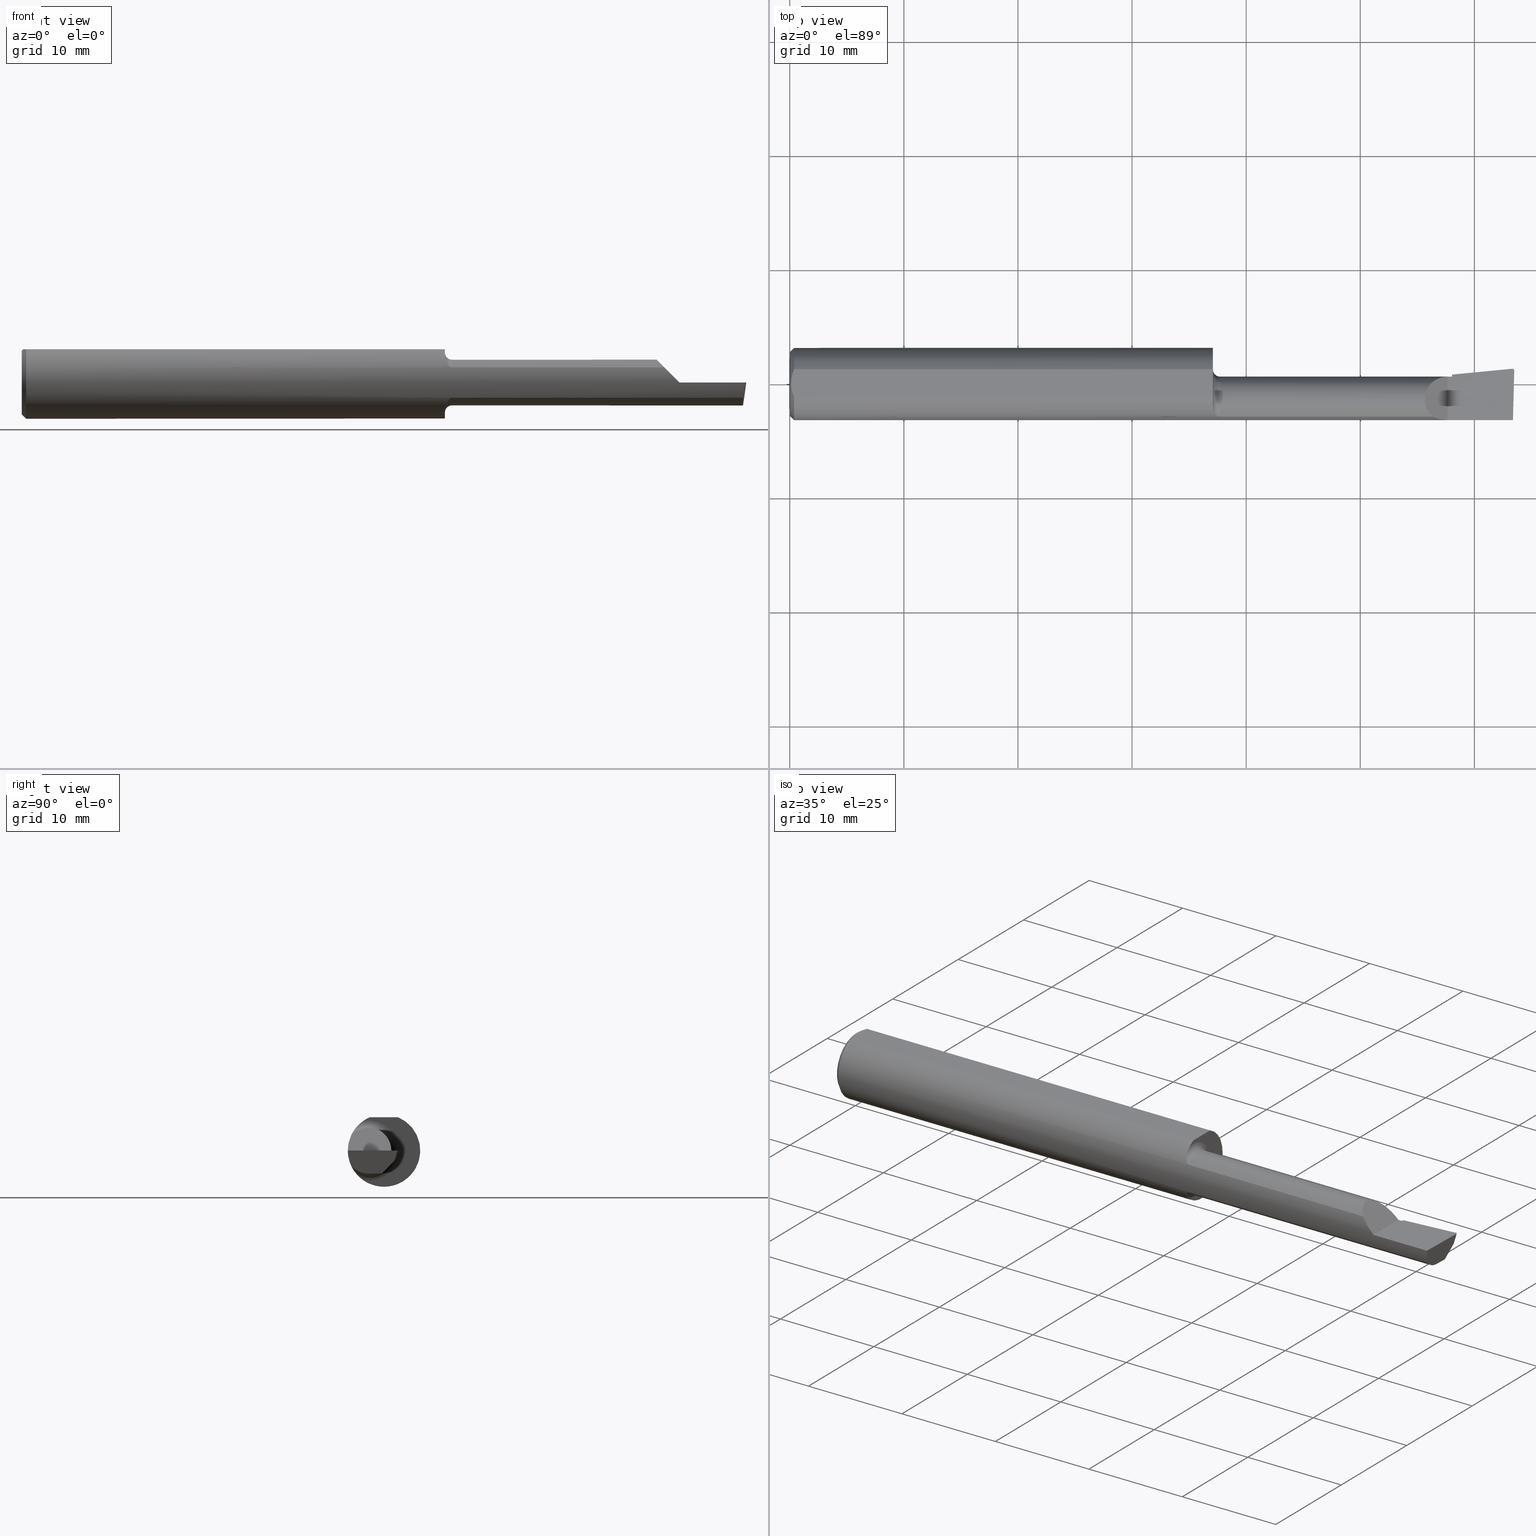
[diagram: canonical four-view strip — front | top / right | iso, engineering-drawing reading convention]
A machine part, canonical four-view strip (front | top / right | iso — engineering-drawing reading convention). The complete STEP part file that produces these views, byte-faithful:
ISO-10303-21;
HEADER;
FILE_DESCRIPTION (( 'STEP AP214' ),
    '1' );
FILE_NAME ('B1801000R.STEP',
    '2020-05-08T22:49:00',
    ( '' ),
    ( '' ),
    'SwSTEP 2.0',
    'SolidWorks 2018',
    '' );
FILE_SCHEMA (( 'AUTOMOTIVE_DESIGN' ));
ENDSEC;

DATA;
#1 = CARTESIAN_POINT ( 'NONE',  ( 2.285000000000000142, -0.05399999999999999939, -0.07914999999999994262 ) ) ;
#2 = CARTESIAN_POINT ( 'NONE',  ( 4.111069666048746882E-31, -0.1248499999999999888, 9.802154982235641300E-16 ) ) ;
#3 = ORIENTED_EDGE ( 'NONE', *, *, #365, .F. ) ;
#4 = CARTESIAN_POINT ( 'NONE',  ( 1.485000000000000098, -0.1133222222222221853, -0.05239843939104740084 ) ) ;
#5 = EDGE_LOOP ( 'NONE', ( #356, #461, #264, #254, #626 ) ) ;
#6 = DIRECTION ( 'NONE',  ( -0.06894566448119622548, 0.7160281025913035613, -0.6946583704589933683 ) ) ;
#7 = COLOUR_RGB ( '',0.7529411764705882248, 0.7529411764705882248, 0.7529411764705882248 ) ;
#8 = CARTESIAN_POINT ( 'NONE',  ( 0.01193974418109659645, 0.04115525648180389656, 0.1148500000000000076 ) ) ;
#9 = CARTESIAN_POINT ( 'NONE',  ( 2.500000000000000000, 0.1748500000000000054, 0.1148500000000000076 ) ) ;
#10 = CARTESIAN_POINT ( 'NONE',  ( 0.0000000000000000000, -0.05399999999999999245, 0.0000000000000000000 ) ) ;
#11 = ORIENTED_EDGE ( 'NONE', *, *, #55, .T. ) ;
#12 = EDGE_CURVE ( 'NONE', #484, #58, #353, .T. ) ;
#13 = ORIENTED_EDGE ( 'NONE', *, *, #323, .F. ) ;
#14 = SURFACE_SIDE_STYLE ('',( #584 ) ) ;
#15 = ADVANCED_FACE ( 'NONE', ( #599 ), #74, .T. ) ;
#16 = EDGE_LOOP ( 'NONE', ( #382, #239 ) ) ;
#17 = CARTESIAN_POINT ( 'NONE',  ( 1.460000000000000187, 0.05014999999999988911, 0.0000000000000000000 ) ) ;
#18 = ORIENTED_EDGE ( 'NONE', *, *, #213, .T. ) ;
#19 = ADVANCED_FACE ( 'NONE', ( #390 ), #593, .F. ) ;
#20 = CARTESIAN_POINT ( 'NONE',  ( 2.285000000000000142, -0.01935479767416495300, -0.07116482597324287618 ) ) ;
#21 = DIRECTION ( 'NONE',  ( 0.0000000000000000000, -1.000000000000000000, 0.0000000000000000000 ) ) ;
#22 = UNCERTAINTY_MEASURE_WITH_UNIT (LENGTH_MEASURE( 1.000000000000000082E-05 ), #545, 'distance_accuracy_value', 'NONE');
#23 = AXIS2_PLACEMENT_3D ( 'NONE', #242, #583, #585 ) ;
#24 = CARTESIAN_POINT ( 'NONE',  ( 2.285000000000000142, -0.02710165559382494982, -0.07914999999999994262 ) ) ;
#25 = EDGE_CURVE ( 'NONE', #305, #197, #175, .T. ) ;
#26 = DIRECTION ( 'NONE',  ( -3.414809992080329023E-18, -1.000000000000000000, 0.0000000000000000000 ) ) ;
#27 = AXIS2_PLACEMENT_3D ( 'NONE', #155, #329, #298 ) ;
#28 = ORIENTED_EDGE ( 'NONE', *, *, #415, .T. ) ;
#29 = DIRECTION ( 'NONE',  ( -1.000000000000000000, 3.414809992080329023E-18, -0.0000000000000000000 ) ) ;
#30 = ADVANCED_FACE ( 'NONE', ( #562 ), #498, .T. ) ;
#31 = EDGE_CURVE ( 'NONE', #311, #119, #614, .T. ) ;
#32 = LINE ( 'NONE', #654, #594 ) ;
#33 = DIRECTION ( 'NONE',  ( 0.0000000000000000000, 0.0000000000000000000, -1.000000000000000000 ) ) ;
#34 = CARTESIAN_POINT ( 'NONE',  ( 2.486868858499483803, -0.07705019563525719595, -0.07914999999999994262 ) ) ;
#35 = CARTESIAN_POINT ( 'NONE',  ( 0.005000000000000237761, 1.454187638523587873E-17, 0.1148500000000000076 ) ) ;
#36 = EDGE_LOOP ( 'NONE', ( #247, #124, #274 ) ) ;
#37 = ORIENTED_EDGE ( 'NONE', *, *, #338, .T. ) ;
#38 = FACE_OUTER_BOUND ( 'NONE', #5, .T. ) ;
#39 = CARTESIAN_POINT ( 'NONE',  ( 2.490095884891770694, 0.04416786174452198843, -0.02604403198038590314 ) ) ;
#40 = PRESENTATION_LAYER_ASSIGNMENT (  '', '', ( #472 ) ) ;
#41 = PLANE ( 'NONE',  #27 ) ;
#42 = CARTESIAN_POINT ( 'NONE',  ( 2.285000000000000142, 0.01818157456899023236, -0.03247372465149773318 ) ) ;
#43 = ADVANCED_FACE ( 'NONE', ( #401 ), #41, .F. ) ;
#44 = EDGE_CURVE ( 'NONE', #340, #145, #383, .T. ) ;
#45 = CARTESIAN_POINT ( 'NONE',  ( 1.485000000000000098, -0.05399999999999999939, 0.0000000000000000000 ) ) ;
#46 = DIRECTION ( 'NONE',  ( 1.000000000000000000, 0.0000000000000000000, 0.0000000000000000000 ) ) ;
#47 = CARTESIAN_POINT ( 'NONE',  ( 0.005000000000000237761, 1.454187638523587873E-17, 0.1148500000000000076 ) ) ;
#48 = CARTESIAN_POINT ( 'NONE',  ( 2.495820705304509612, 0.03974745711304673162, -0.03116861643763600698 ) ) ;
#49 = ADVANCED_FACE ( 'NONE', ( #604 ), #143, .T. ) ;
#50 = DIRECTION ( 'NONE',  ( 0.0000000000000000000, 0.6963153109074924352, 0.7177360153954949196 ) ) ;
#51 = CARTESIAN_POINT ( 'NONE',  ( 1.459999999999999742, -0.07605073478940853338, -0.09921234202752104991 ) ) ;
#52 = ORIENTED_EDGE ( 'NONE', *, *, #487, .T. ) ;
#53 = CARTESIAN_POINT ( 'NONE',  ( 2.493512870449331675, 0.05249616680637380489, -5.122214988120493535E-17 ) ) ;
#54 = VECTOR ( 'NONE', #635, 39.37007874015748854 ) ;
#55 = EDGE_CURVE ( 'NONE', #572, #520, #110, .T. ) ;
#56 = CARTESIAN_POINT ( 'NONE',  ( 2.493823174557826317, 0.04399139898587246800, -0.02659586115756924427 ) ) ;
#57 = ORIENTED_EDGE ( 'NONE', *, *, #466, .F. ) ;
#58 = VERTEX_POINT ( 'NONE', #381 ) ;
#59 = FACE_OUTER_BOUND ( 'NONE', #294, .T. ) ;
#60 = VECTOR ( 'NONE', #343, 39.37007874015748143 ) ;
#61 = LINE ( 'NONE', #559, #432 ) ;
#62 = PRESENTATION_STYLE_ASSIGNMENT (( #348 ) ) ;
#63 = DIRECTION ( 'NONE',  ( -3.414809992080329408E-18, -1.000000000000000000, 0.0000000000000000000 ) ) ;
#64 = DIRECTION ( 'NONE',  ( -1.000000000000000000, 3.414809992080329023E-18, 0.0000000000000000000 ) ) ;
#65 = DIRECTION ( 'NONE',  ( -1.000000000000000000, 3.414809992080329023E-18, -0.0000000000000000000 ) ) ;
#66 = CARTESIAN_POINT ( 'NONE',  ( 2.493512870449331675, 0.05249616680637380489, -5.122214988120493535E-17 ) ) ;
#67 = ORIENTED_EDGE ( 'NONE', *, *, #378, .T. ) ;
#68 = CARTESIAN_POINT ( 'NONE',  ( 2.492906680581910006, 0.05246699102467097114, -6.532122848641467145E-17 ) ) ;
#69 = VERTEX_POINT ( 'NONE', #476 ) ;
#70 = DIRECTION ( 'NONE',  ( -3.414809992080329023E-18, -1.000000000000000000, 0.0000000000000000000 ) ) ;
#71 = CONICAL_SURFACE ( 'NONE', #443, 0.1248500000000000026, 0.7853981633974602694 ) ;
#72 = MECHANICAL_DESIGN_GEOMETRIC_PRESENTATION_REPRESENTATION (  '', ( #472 ), #643 ) ;
#73 = DIRECTION ( 'NONE',  ( 1.000000000000000000, 0.0000000000000000000, 0.0000000000000000000 ) ) ;
#74 = PLANE ( 'NONE',  #475 ) ;
#75 = EDGE_CURVE ( 'NONE', #439, #224, #287, .T. ) ;
#76 = CIRCLE ( 'NONE', #233, 0.1041499999999998954 ) ;
#77 = VECTOR ( 'NONE', #483, 39.37007874015748143 ) ;
#78 = EDGE_CURVE ( 'NONE', #442, #166, #573, .T. ) ;
#79 = FACE_OUTER_BOUND ( 'NONE', #266, .T. ) ;
#80 = CARTESIAN_POINT ( 'NONE',  ( 2.510715839651728842, 0.04619605541595023929, -0.02600000000000000228 ) ) ;
#81 = CARTESIAN_POINT ( 'NONE',  ( 2.489495472034650714, 0.04415276641570021338, -0.02600000000000000228 ) ) ;
#82 = EDGE_CURVE ( 'NONE', #101, #219, #273, .T. ) ;
#83 = DIRECTION ( 'NONE',  ( -0.9953961983671800740, -0.09584575252021031166, 0.0000000000000000000 ) ) ;
#84 = ORIENTED_EDGE ( 'NONE', *, *, #283, .F. ) ;
#85 = CARTESIAN_POINT ( 'NONE',  ( 1.459999999999997300, -0.07604212793636101753, 0.09921827904968774647 ) ) ;
#86 = COLOUR_RGB ( '',0.7529411764705882248, 0.7529411764705882248, 0.7529411764705882248 ) ;
#87 = PRESENTATION_STYLE_ASSIGNMENT (( #346 ) ) ;
#88 = DIRECTION ( 'NONE',  ( 0.0000000000000000000, 1.000000000000000000, -8.537024980200821325E-17 ) ) ;
#89 = LENGTH_MEASURE_WITH_UNIT ( LENGTH_MEASURE( 0.02539999999999999897 ), #364 );
#90 = VECTOR ( 'NONE', #177, 39.37007874015748143 ) ;
#91 = EDGE_CURVE ( 'NONE', #644, #197, #523, .T. ) ;
#92 = ADVANCED_FACE ( 'NONE', ( #538 ), #222, .F. ) ;
#93 =( GEOMETRIC_REPRESENTATION_CONTEXT ( 3 ) GLOBAL_UNCERTAINTY_ASSIGNED_CONTEXT ( ( #491 ) ) GLOBAL_UNIT_ASSIGNED_CONTEXT ( ( #580, #405, #567 ) ) REPRESENTATION_CONTEXT ( 'NONE', 'WORKASPACE' ) );
#94 = VERTEX_POINT ( 'NONE', #4 ) ;
#95 = CARTESIAN_POINT ( 'NONE',  ( 0.0000000000000000000, 0.0000000000000000000, 0.0000000000000000000 ) ) ;
#96 = AXIS2_PLACEMENT_3D ( 'NONE', #616, #108, #181 ) ;
#97 = CARTESIAN_POINT ( 'NONE',  ( 0.0000000000000000000, 1.437123018799416669E-17, 0.1098499999999996424 ) ) ;
#98 = ADVANCED_FACE ( 'NONE', ( #38 ), #71, .T. ) ;
#99 = CARTESIAN_POINT ( 'NONE',  ( 1.387204702863203742, -0.05399999999999999939, 3.984153547983287662E-16 ) ) ;
#100 = ORIENTED_EDGE ( 'NONE', *, *, #236, .T. ) ;
#101 = VERTEX_POINT ( 'NONE', #433 ) ;
#102 = AXIS2_PLACEMENT_3D ( 'NONE', #385, #481, #617 ) ;
#103 = APPLICATION_CONTEXT ( 'automotive_design' ) ;
#104 = CARTESIAN_POINT ( 'NONE',  ( 2.234090882882975748, -0.1209466293052443159, 0.03590911711702327036 ) ) ;
#105 = ADVANCED_FACE ( 'NONE', ( #139 ), #333, .F. ) ;
#106 = DIRECTION ( 'NONE',  ( 0.0000000000000000000, -1.000000000000000000, 0.0000000000000000000 ) ) ;
#107 = EDGE_LOOP ( 'NONE', ( #100, #67 ) ) ;
#108 = DIRECTION ( 'NONE',  ( -1.000000000000000000, 3.414809992080329023E-18, -0.0000000000000000000 ) ) ;
#109 = CARTESIAN_POINT ( 'NONE',  ( 0.01499999999999999424, 0.0000000000000000000, 0.0000000000000000000 ) ) ;
#110 = LINE ( 'NONE', #2, #90 ) ;
#111 = CARTESIAN_POINT ( 'NONE',  ( 2.489630139748174376, 0.04448099542964070729, -0.02497357182854489238 ) ) ;
#112 = CARTESIAN_POINT ( 'NONE',  ( 1.460000000000000187, 0.0000000000000000000, 0.0000000000000000000 ) ) ;
#113 = ADVANCED_FACE ( 'NONE', ( #59 ), #669, .F. ) ;
#114 = CARTESIAN_POINT ( 'NONE',  ( 1.474891482046761571, -0.1103130882036816723, 0.05851436580809124544 ) ) ;
#115 = AXIS2_PLACEMENT_3D ( 'NONE', #109, #302, #117 ) ;
#116 = EDGE_LOOP ( 'NONE', ( #399, #647, #424, #18, #216 ) ) ;
#117 = DIRECTION ( 'NONE',  ( 0.0000000000000000000, 0.0000000000000000000, -1.000000000000000000 ) ) ;
#118 = EDGE_CURVE ( 'NONE', #520, #252, #421, .T. ) ;
#119 = VERTEX_POINT ( 'NONE', #68 ) ;
#120 = CARTESIAN_POINT ( 'NONE',  ( 1.460429435078794524, -0.08094870196673341345, -0.09525057567498891598 ) ) ;
#121 = DIRECTION ( 'NONE',  ( 1.000000000000000000, -3.414809992080329023E-18, 0.0000000000000000000 ) ) ;
#122 = CYLINDRICAL_SURFACE ( 'NONE', #549, 0.07914999999999992875 ) ;
#123 = CARTESIAN_POINT ( 'NONE',  ( 0.0000000000000000000, 0.04895916665957457392, 0.1148500000000000076 ) ) ;
#124 = ORIENTED_EDGE ( 'NONE', *, *, #588, .T. ) ;
#125 = EDGE_CURVE ( 'NONE', #241, #311, #138, .T. ) ;
#126 = DIRECTION ( 'NONE',  ( 0.0000000000000000000, 1.000000000000000000, 0.0000000000000000000 ) ) ;
#127 = DIMENSIONAL_EXPONENTS ( 1.000000000000000000, 0.0000000000000000000, 0.0000000000000000000, 0.0000000000000000000, 0.0000000000000000000, 0.0000000000000000000, 0.0000000000000000000 ) ;
#128 = EDGE_LOOP ( 'NONE', ( #131, #261, #541, #510 ) ) ;
#129 = CARTESIAN_POINT ( 'NONE',  ( 2.285000000000000142, -0.05399999999999999939, 0.0000000000000000000 ) ) ;
#130 = LINE ( 'NONE', #123, #525 ) ;
#131 = ORIENTED_EDGE ( 'NONE', *, *, #78, .T. ) ;
#132 = DIRECTION ( 'NONE',  ( -1.000000000000000000, 3.414809992080329023E-18, -0.0000000000000000000 ) ) ;
#133 = ADVANCED_FACE ( 'NONE', ( #589 ), #122, .T. ) ;
#134 = AXIS2_PLACEMENT_3D ( 'NONE', #620, #504, #453 ) ;
#135 = AXIS2_PLACEMENT_3D ( 'NONE', #9, #642, #144 ) ;
#136 = EDGE_CURVE ( 'NONE', #467, #632, #509, .T. ) ;
#137 = EDGE_CURVE ( 'NONE', #69, #219, #306, .T. ) ;
#138 = LINE ( 'NONE', #532, #379 ) ;
#139 = FACE_OUTER_BOUND ( 'NONE', #107, .T. ) ;
#140 = EDGE_CURVE ( 'NONE', #484, #305, #189, .T. ) ;
#141 = ORIENTED_EDGE ( 'NONE', *, *, #137, .F. ) ;
#142 = CARTESIAN_POINT ( 'NONE',  ( 2.510715839651728842, 0.04619605541595023929, -0.02600000000000000228 ) ) ;
#143 = CYLINDRICAL_SURFACE ( 'NONE', #531, 0.006500000000000000569 ) ;
#144 = DIRECTION ( 'NONE',  ( 0.0000000000000000000, 1.000000000000000000, -4.882484975808304553E-17 ) ) ;
#145 = VERTEX_POINT ( 'NONE', #24 ) ;
#146 = VECTOR ( 'NONE', #631, 39.37007874015748143 ) ;
#147 = CARTESIAN_POINT ( 'NONE',  ( 1.468812999615358716, -0.1047986892473505433, 0.06808587976958069277 ) ) ;
#148 = EDGE_CURVE ( 'NONE', #178, #69, #61, .T. ) ;
#149 = CARTESIAN_POINT ( 'NONE',  ( 0.01499999999999999077, -0.04895916665957456004, 0.1148500000000000215 ) ) ;
#150 = EDGE_CURVE ( 'NONE', #335, #305, #561, .T. ) ;
#151 = ORIENTED_EDGE ( 'NONE', *, *, #25, .F. ) ;
#152 = ORIENTED_EDGE ( 'NONE', *, *, #326, .F. ) ;
#153 = FACE_OUTER_BOUND ( 'NONE', #116, .T. ) ;
#154 = AXIS2_PLACEMENT_3D ( 'NONE', #307, #350, #179 ) ;
#155 = CARTESIAN_POINT ( 'NONE',  ( 2.270000000000000018, -0.2500000000000000555, 2.816687638038912303E-17 ) ) ;
#156 = VECTOR ( 'NONE', #391, 39.37007874015748854 ) ;
#157 = EDGE_CURVE ( 'NONE', #241, #439, #449, .T. ) ;
#158 = VECTOR ( 'NONE', #521, 39.37007874015748854 ) ;
#159 = CARTESIAN_POINT ( 'NONE',  ( 1.460000000000000187, -0.07089166666666688044, 0.1027710761704001691 ) ) ;
#160 =( BOUNDED_CURVE ( )  B_SPLINE_CURVE ( 3, ( #471, #250, #508, #527 ),
 .UNSPECIFIED., .F., .T. ) 
 B_SPLINE_CURVE_WITH_KNOTS ( ( 4, 4 ),
 ( 5.435892245814752499, 7.853981633974484566 ),
 .UNSPECIFIED. ) 
 CURVE ( )  GEOMETRIC_REPRESENTATION_ITEM ( )  RATIONAL_B_SPLINE_CURVE ( ( 1.000000000000000000, 0.5692753596694920537, 0.5692753596694920537, 1.000000000000000000 ) ) 
 REPRESENTATION_ITEM ( '' )  );
#161 = ORIENTED_EDGE ( 'NONE', *, *, #434, .F. ) ;
#162 = ADVANCED_FACE ( 'NONE', ( #320 ), #554, .T. ) ;
#163 = DIRECTION ( 'NONE',  ( 1.000000000000000000, -3.414809992080329023E-18, 0.0000000000000000000 ) ) ;
#164 = EDGE_CURVE ( 'NONE', #644, #384, #32, .T. ) ;
#165 = ORIENTED_EDGE ( 'NONE', *, *, #275, .T. ) ;
#166 = VERTEX_POINT ( 'NONE', #377 ) ;
#167 = DIRECTION ( 'NONE',  ( 0.1219104985253571388, 0.0000000000000000000, 0.9925410975618585985 ) ) ;
#168 = ORIENTED_EDGE ( 'NONE', *, *, #347, .T. ) ;
#169 = ADVANCED_FACE ( 'NONE', ( #79 ), #603, .T. ) ;
#170 = DIRECTION ( 'NONE',  ( 1.000000000000000000, -3.414809992080329023E-18, 0.0000000000000000000 ) ) ;
#171 = LINE ( 'NONE', #270, #477 ) ;
#172 = EDGE_LOOP ( 'NONE', ( #52, #624, #362, #392, #393, #203, #435, #310 ) ) ;
#173 = LINE ( 'NONE', #228, #501 ) ;
#174 = CARTESIAN_POINT ( 'NONE',  ( 2.270000000000000018, 0.02514999999999986691, 2.816687638038912303E-17 ) ) ;
#175 =( BOUNDED_CURVE ( )  B_SPLINE_CURVE ( 3, ( #39, #56, #48, #322 ),
 .UNSPECIFIED., .F., .T. ) 
 B_SPLINE_CURVE_WITH_KNOTS ( ( 4, 4 ),
 ( 3.156599629463093137, 4.715023529952360626 ),
 .UNSPECIFIED. ) 
 CURVE ( )  GEOMETRIC_REPRESENTATION_ITEM ( )  RATIONAL_B_SPLINE_CURVE ( ( 1.000000000000000000, 0.8076450242550388126, 0.8076450242550388126, 1.000000000000000000 ) ) 
 REPRESENTATION_ITEM ( '' )  );
#176 = ADVANCED_FACE ( 'NONE', ( #499 ), #641, .F. ) ;
#177 = DIRECTION ( 'NONE',  ( -1.000000000000000000, -0.0000000000000000000, -0.0000000000000000000 ) ) ;
#178 = VERTEX_POINT ( 'NONE', #232 ) ;
#179 = DIRECTION ( 'NONE',  ( 0.0000000000000000000, 0.0000000000000000000, 1.000000000000000000 ) ) ;
#180 = PLANE ( 'NONE',  #332 ) ;
#181 = DIRECTION ( 'NONE',  ( 0.0000000000000000000, -1.000000000000000000, 0.0000000000000000000 ) ) ;
#182 = LINE ( 'NONE', #519, #666 ) ;
#183 = DIRECTION ( 'NONE',  ( -0.02617694830793667118, -0.9996573249755555945, 8.535148296544268902E-17 ) ) ;
#184 = EDGE_LOOP ( 'NONE', ( #465, #276, #512, #168, #295, #494, #627, #649, #628, #243 ) ) ;
#185 = CARTESIAN_POINT ( 'NONE',  ( 2.270000000000000018, -0.1248500000000000165, 2.816687638038912303E-17 ) ) ;
#186 = EDGE_CURVE ( 'NONE', #58, #439, #182, .T. ) ;
#187 = LINE ( 'NONE', #611, #321 ) ;
#188 = VERTEX_POINT ( 'NONE', #214 ) ;
#189 =( BOUNDED_CURVE ( )  B_SPLINE_CURVE ( 3, ( #81, #440, #577, #612 ),
 .UNSPECIFIED., .F., .F. ) 
 B_SPLINE_CURVE_WITH_KNOTS ( ( 4, 4 ),
 ( 3.064097098354485738, 3.156599629463093137 ),
 .UNSPECIFIED. ) 
 CURVE ( )  GEOMETRIC_REPRESENTATION_ITEM ( )  RATIONAL_B_SPLINE_CURVE ( ( 1.000000000000000000, 0.9992870672494007511, 0.9992870672494007511, 1.000000000000000000 ) ) 
 REPRESENTATION_ITEM ( '' )  );
#190 = FILL_AREA_STYLE_COLOUR ( '', #86 ) ;
#191 = ORIENTED_EDGE ( 'NONE', *, *, #186, .T. ) ;
#192 = CARTESIAN_POINT ( 'NONE',  ( 2.492067177432473635, -0.2497922717304240092, -6.496913693731578984E-17 ) ) ;
#193 = ADVANCED_FACE ( 'NONE', ( #560 ), #575, .T. ) ;
#194 = CARTESIAN_POINT ( 'NONE',  ( 2.489204846642126157, -0.1133222222222223519, -0.05239843939104731063 ) ) ;
#195 = ORIENTED_EDGE ( 'NONE', *, *, #317, .F. ) ;
#196 = CARTESIAN_POINT ( 'NONE',  ( 1.460000000000000187, -0.07089166666666688044, -0.1027710761704001691 ) ) ;
#197 = VERTEX_POINT ( 'NONE', #536 ) ;
#198 = CARTESIAN_POINT ( 'NONE',  ( 1.460000000000000187, 0.0000000000000000000, 0.0000000000000000000 ) ) ;
#199 = ADVANCED_FACE ( 'NONE', ( #153 ), #478, .T. ) ;
#200 = AXIS2_PLACEMENT_3D ( 'NONE', #257, #260, #262 ) ;
#201 = EDGE_LOOP ( 'NONE', ( #285, #37, #528, #553 ) ) ;
#202 = CARTESIAN_POINT ( 'NONE',  ( 2.489495472034650714, 0.04415276641570021338, -0.02600000000000000228 ) ) ;
#203 = ORIENTED_EDGE ( 'NONE', *, *, #557, .F. ) ;
#204 = CARTESIAN_POINT ( 'NONE',  ( 2.499806390372797171, 0.04575634663142228581, -6.816679106956261721E-17 ) ) ;
#205 = CIRCLE ( 'NONE', #154, 0.1248500000000000026 ) ;
#206 = ORIENTED_EDGE ( 'NONE', *, *, #150, .F. ) ;
#207 = DIRECTION ( 'NONE',  ( 0.0000000000000000000, -1.000000000000000000, 1.776356839400250465E-15 ) ) ;
#208 = AXIS2_PLACEMENT_3D ( 'NONE', #395, #398, #167 ) ;
#209 = ORIENTED_EDGE ( 'NONE', *, *, #466, .T. ) ;
#210 = ORIENTED_EDGE ( 'NONE', *, *, #556, .F. ) ;
#211 = ORIENTED_EDGE ( 'NONE', *, *, #164, .F. ) ;
#212 = VECTOR ( 'NONE', #234, 39.37007874015748143 ) ;
#213 = EDGE_CURVE ( 'NONE', #597, #101, #205, .T. ) ;
#214 = CARTESIAN_POINT ( 'NONE',  ( 2.499806390372797171, 0.04575634663142228581, -6.816679106956261721E-17 ) ) ;
#215 = EDGE_LOOP ( 'NONE', ( #13, #314, #458, #544 ) ) ;
#216 = ORIENTED_EDGE ( 'NONE', *, *, #530, .F. ) ;
#217 = CARTESIAN_POINT ( 'NONE',  ( 1.463311842522019068, -0.09402697795089832999, 0.08235509766544017729 ) ) ;
#218 = CARTESIAN_POINT ( 'NONE',  ( 2.493108609909240325, 0.05248643460740281402, -5.116154136438505500E-17 ) ) ;
#219 = VERTEX_POINT ( 'NONE', #149 ) ;
#220 = ORIENTED_EDGE ( 'NONE', *, *, #91, .T. ) ;
#221 = VECTOR ( 'NONE', #503, 39.37007874015748143 ) ;
#222 = PLANE ( 'NONE',  #570 ) ;
#223 = EDGE_CURVE ( 'NONE', #352, #94, #372, .T. ) ;
#224 = VERTEX_POINT ( 'NONE', #20 ) ;
#225 = ORIENTED_EDGE ( 'NONE', *, *, #326, .T. ) ;
#226 = VECTOR ( 'NONE', #231, 39.37007874015748854 ) ;
#227 = CIRCLE ( 'NONE', #134, 0.1098499999999996424 ) ;
#228 = CARTESIAN_POINT ( 'NONE',  ( 2.285000000000000142, 0.005014495618354286935, -0.04604586163080774674 ) ) ;
#229 =( GEOMETRIC_REPRESENTATION_CONTEXT ( 3 ) GLOBAL_UNCERTAINTY_ASSIGNED_CONTEXT ( ( #454 ) ) GLOBAL_UNIT_ASSIGNED_CONTEXT ( ( #586, #394, #407 ) ) REPRESENTATION_CONTEXT ( 'NONE', 'WORKASPACE' ) );
#230 = SHAPE_DEFINITION_REPRESENTATION ( #581, #470 ) ;
#231 = DIRECTION ( 'NONE',  ( 0.02617694830793667465, 0.9996573249755555945, -1.081567693923466137E-17 ) ) ;
#232 = CARTESIAN_POINT ( 'NONE',  ( 1.460000000000000187, 0.04895916665957456004, 0.1148500000000000076 ) ) ;
#233 = AXIS2_PLACEMENT_3D ( 'NONE', #460, #132, #106 ) ;
#234 = DIRECTION ( 'NONE',  ( 0.7071067811865390240, 0.0000000000000000000, -0.7071067811865560104 ) ) ;
#235 = DIRECTION ( 'NONE',  ( -1.000000000000000000, 0.0000000000000000000, 4.194046792260684025E-16 ) ) ;
#236 = EDGE_CURVE ( 'NONE', #426, #467, #516, .T. ) ;
#237 = CARTESIAN_POINT ( 'NONE',  ( 2.493512870449331675, 0.05249616680637380489, -5.122214988120493535E-17 ) ) ;
#238 = EDGE_CURVE ( 'NONE', #252, #280, #160, .T. ) ;
#239 = ORIENTED_EDGE ( 'NONE', *, *, #75, .T. ) ;
#240 = CARTESIAN_POINT ( 'NONE',  ( 2.285000000000000142, -0.05399999999999999939, 0.0000000000000000000 ) ) ;
#241 = VERTEX_POINT ( 'NONE', #505 ) ;
#242 = CARTESIAN_POINT ( 'NONE',  ( 2.500000000000000000, -0.05399999999999999939, -0.07914999999999994262 ) ) ;
#243 = ORIENTED_EDGE ( 'NONE', *, *, #415, .F. ) ;
#244 = ADVANCED_FACE ( 'NONE', ( #497 ), #180, .T. ) ;
#245 = CARTESIAN_POINT ( 'NONE',  ( 2.477503890861344260, 0.007285921144409660336, -0.1200395610706566918 ) ) ;
#246 = CARTESIAN_POINT ( 'NONE',  ( 2.493310817358693754, 0.05249616680637380489, -5.124634811486028890E-17 ) ) ;
#247 = ORIENTED_EDGE ( 'NONE', *, *, #290, .F. ) ;
#248 = ADVANCED_FACE ( 'NONE', ( #355 ), #489, .F. ) ;
#249 = AXIS2_PLACEMENT_3D ( 'NONE', #17, #163, #445 ) ;
#250 = CARTESIAN_POINT ( 'NONE',  ( 2.152626807264919506, -0.05593098589442772189, 0.1173731927350791099 ) ) ;
#251 = CARTESIAN_POINT ( 'NONE',  ( 0.0000000000000000000, 0.0000000000000000000, -0.1098499999999996424 ) ) ;
#252 = VERTEX_POINT ( 'NONE', #555 ) ;
#253 = DIRECTION ( 'NONE',  ( 1.000000000000000000, -3.414809992080329023E-18, 0.0000000000000000000 ) ) ;
#254 = ORIENTED_EDGE ( 'NONE', *, *, #82, .T. ) ;
#255 = ADVANCED_FACE ( 'NONE', ( #411 ), #590, .T. ) ;
#256 = CIRCLE ( 'NONE', #96, 0.07914999999999988711 ) ;
#257 = CARTESIAN_POINT ( 'NONE',  ( 2.285000000000000142, -0.05399999999999999939, 0.0000000000000000000 ) ) ;
#258 = DIRECTION ( 'NONE',  ( -1.000000000000000000, 5.691349986800549142E-18, -0.0000000000000000000 ) ) ;
#259 = EDGE_CURVE ( 'NONE', #352, #384, #513, .T. ) ;
#260 = DIRECTION ( 'NONE',  ( -1.000000000000000000, 3.414809992080329023E-18, -0.0000000000000000000 ) ) ;
#261 = ORIENTED_EDGE ( 'NONE', *, *, #380, .T. ) ;
#262 = DIRECTION ( 'NONE',  ( 0.0000000000000000000, -1.000000000000000000, 0.0000000000000000000 ) ) ;
#263 = EDGE_CURVE ( 'NONE', #224, #439, #663, .T. ) ;
#264 = ORIENTED_EDGE ( 'NONE', *, *, #530, .T. ) ;
#265 = CARTESIAN_POINT ( 'NONE',  ( 1.479195140613335457, -0.1123729516825158758, -0.05441079362540564984 ) ) ;
#266 = EDGE_LOOP ( 'NONE', ( #344, #600, #191, #418 ) ) ;
#267 = LINE ( 'NONE', #296, #351 ) ;
#268 = ORIENTED_EDGE ( 'NONE', *, *, #91, .F. ) ;
#269 = CARTESIAN_POINT ( 'NONE',  ( 1.466709462345916704, -0.1014961360546400848, -0.07295290821911695756 ) ) ;
#270 = CARTESIAN_POINT ( 'NONE',  ( 2.500086462864390846, 0.04643897437746655893, 0.002134693520066799962 ) ) ;
#271 = EDGE_CURVE ( 'NONE', #442, #388, #76, .T. ) ;
#272 = ORIENTED_EDGE ( 'NONE', *, *, #75, .F. ) ;
#273 = CIRCLE ( 'NONE', #102, 0.1248500000000000026 ) ;
#274 = ORIENTED_EDGE ( 'NONE', *, *, #44, .F. ) ;
#275 = EDGE_CURVE ( 'NONE', #520, #280, #551, .T. ) ;
#276 = ORIENTED_EDGE ( 'NONE', *, *, #223, .T. ) ;
#277 = AXIS2_PLACEMENT_3D ( 'NONE', #546, #569, #534 ) ;
#278 = PRODUCT_DEFINITION_FORMATION_WITH_SPECIFIED_SOURCE ( 'ANY', '', #410, .NOT_KNOWN. ) ;
#279 = AXIS2_PLACEMENT_3D ( 'NONE', #129, #253, #207 ) ;
#280 = VERTEX_POINT ( 'NONE', #174 ) ;
#281 = DIRECTION ( 'NONE',  ( -0.1240019227990242640, -0.3022330132596687813, -0.9451342385281182867 ) ) ;
#282 = ORIENTED_EDGE ( 'NONE', *, *, #137, .T. ) ;
#283 = EDGE_CURVE ( 'NONE', #597, #178, #130, .T. ) ;
#284 = CARTESIAN_POINT ( 'NONE',  ( 1.885000000000000231, -0.1133222222222223519, -0.05239843939104731063 ) ) ;
#285 = ORIENTED_EDGE ( 'NONE', *, *, #31, .T. ) ;
#286 = MANIFOLD_SOLID_BREP ( '0ADBB8F7-9611-40f9-B6F8-76F81C865822-GAAFaceID16', #312 ) ;
#287 = LINE ( 'NONE', #658, #54 ) ;
#288 = DIRECTION ( 'NONE',  ( 0.0000000000000000000, 0.0000000000000000000, -1.000000000000000000 ) ) ;
#289 = CARTESIAN_POINT ( 'NONE',  ( 1.460000000000000187, -0.07089166666666688044, 0.1027710761704001691 ) ) ;
#290 = EDGE_CURVE ( 'NONE', #224, #340, #371, .T. ) ;
#291 = CARTESIAN_POINT ( 'NONE',  ( 0.01499999999999999424, 0.0000000000000000000, -0.1248500000000000026 ) ) ;
#292 = CARTESIAN_POINT ( 'NONE',  ( 2.477503890861344260, 0.01347707717554684666, -0.1220193557565051184 ) ) ;
#293 = EDGE_LOOP ( 'NONE', ( #613, #84, #543, #3, #141 ) ) ;
#294 = EDGE_LOOP ( 'NONE', ( #220, #225, #328, #210, #334, #211 ) ) ;
#295 = ORIENTED_EDGE ( 'NONE', *, *, #238, .T. ) ;
#296 = CARTESIAN_POINT ( 'NONE',  ( 2.495458699183907392, -0.006836787764517337010, -0.07914999999999994262 ) ) ;
#297 = CARTESIAN_POINT ( 'NONE',  ( 2.251833290544947630, -0.1248500000000000165, 0.01816670945505163143 ) ) ;
#298 = DIRECTION ( 'NONE',  ( -0.7071067811865516806, 0.0000000000000000000, 0.7071067811865431318 ) ) ;
#299 = EDGE_LOOP ( 'NONE', ( #610, #455, #438, #268, #342, #414, #272, #420 ) ) ;
#300 = CARTESIAN_POINT ( 'NONE',  ( 2.489204846642126157, -0.1133222222222223519, -0.05239843939104731063 ) ) ;
#301 = ADVANCED_FACE ( 'NONE', ( #645 ), #500, .F. ) ;
#302 = DIRECTION ( 'NONE',  ( 1.000000000000000000, 0.0000000000000000000, 0.0000000000000000000 ) ) ;
#303 = EDGE_LOOP ( 'NONE', ( #464, #319, #11, #474, #542, #634, #161, #282, #526, #327, #579, #57, #429 ) ) ;
#304 = EDGE_CURVE ( 'NONE', #311, #58, #469, .T. ) ;
#305 = VERTEX_POINT ( 'NONE', #408 ) ;
#306 = LINE ( 'NONE', #486, #422 ) ;
#307 = CARTESIAN_POINT ( 'NONE',  ( 0.01499999999999999424, 0.0000000000000000000, 0.0000000000000000000 ) ) ;
#308 = ORIENTED_EDGE ( 'NONE', *, *, #271, .T. ) ;
#309 = DIRECTION ( 'NONE',  ( -2.377784481325426013E-18, -0.6963153109074924352, -0.7177360153954948085 ) ) ;
#310 = ORIENTED_EDGE ( 'NONE', *, *, #55, .F. ) ;
#311 = VERTEX_POINT ( 'NONE', #629 ) ;
#312 = CLOSED_SHELL ( 'NONE', ( #193, #199, #169, #255, #301, #30, #176, #92, #43, #105, #98, #19, #162, #133, #244, #15, #248, #113, #49 ) ) ;
#313 = AXIS2_PLACEMENT_3D ( 'NONE', #112, #121, #126 ) ;
#314 = ORIENTED_EDGE ( 'NONE', *, *, #150, .T. ) ;
#315 = CARTESIAN_POINT ( 'NONE',  ( 2.497312560284842053, 0.05249616680637387428, -5.292469782314655041E-17 ) ) ;
#316 = EDGE_CURVE ( 'NONE', #644, #145, #267, .T. ) ;
#317 = EDGE_CURVE ( 'NONE', #188, #335, #446, .T. ) ;
#318 = SURFACE_SIDE_STYLE ('',( #485 ) ) ;
#319 = ORIENTED_EDGE ( 'NONE', *, *, #556, .T. ) ;
#320 = FACE_OUTER_BOUND ( 'NONE', #587, .T. ) ;
#321 = VECTOR ( 'NONE', #396, 39.37007874015748143 ) ;
#322 = CARTESIAN_POINT ( 'NONE',  ( 2.494935772196837487, 0.03388506613407605422, -0.03712352112763151607 ) ) ;
#323 = EDGE_CURVE ( 'NONE', #335, #119, #547, .T. ) ;
#324 = ORIENTED_EDGE ( 'NONE', *, *, #434, .T. ) ;
#325 = EDGE_LOOP ( 'NONE', ( #206, #195, #152, #151 ) ) ;
#326 = EDGE_CURVE ( 'NONE', #197, #188, #171, .T. ) ;
#327 = ORIENTED_EDGE ( 'NONE', *, *, #213, .F. ) ;
#328 = ORIENTED_EDGE ( 'NONE', *, *, #487, .F. ) ;
#329 = DIRECTION ( 'NONE',  ( -0.7071067811865432429, 0.0000000000000000000, -0.7071067811865517916 ) ) ;
#330 = DIRECTION ( 'NONE',  ( -0.9953961983671800740, -0.09584575252021028391, 1.093478026937437355E-17 ) ) ;
#331 = CARTESIAN_POINT ( 'NONE',  ( 2.500000000000000000, -0.2500000000000000555, -6.829619984160658046E-17 ) ) ;
#332 = AXIS2_PLACEMENT_3D ( 'NONE', #400, #419, #456 ) ;
#333 = PLANE ( 'NONE',  #495 ) ;
#334 = ORIENTED_EDGE ( 'NONE', *, *, #259, .T. ) ;
#335 = VERTEX_POINT ( 'NONE', #53 ) ;
#336 = VECTOR ( 'NONE', #657, 39.37007874015748854 ) ;
#337 = DIRECTION ( 'NONE',  ( -0.1240019227990242640, -0.3022330132596687813, -0.9451342385281182867 ) ) ;
#338 = EDGE_CURVE ( 'NONE', #119, #484, #502, .T. ) ;
#339 = CARTESIAN_POINT ( 'NONE',  ( 0.005000000000000194393, -0.008410771716546815852, 0.1148500000000000076 ) ) ;
#340 = VERTEX_POINT ( 'NONE', #662 ) ;
#341 = ORIENTED_EDGE ( 'NONE', *, *, #118, .F. ) ;
#342 = ORIENTED_EDGE ( 'NONE', *, *, #316, .T. ) ;
#343 = DIRECTION ( 'NONE',  ( -0.1240019227990242362, -0.3022330132596687258, -0.9451342385281181757 ) ) ;
#344 = ORIENTED_EDGE ( 'NONE', *, *, #125, .T. ) ;
#345 = CARTESIAN_POINT ( 'NONE',  ( 2.285000000000000142, 0.03244785463752900695, 0.0000000000000000000 ) ) ;
#346 = SURFACE_STYLE_USAGE ( .BOTH. , #318 ) ;
#347 = EDGE_CURVE ( 'NONE', #166, #252, #187, .T. ) ;
#348 = SURFACE_STYLE_USAGE ( .BOTH. , #14 ) ;
#349 = B_SPLINE_CURVE_WITH_KNOTS ( 'NONE', 3,
 ( #363, #370, #550, #265, #447, #441, #409, #412, #269, #450, #416, #120, #51, #196 ),
 .UNSPECIFIED., .F., .F.,
 ( 4, 2, 2, 2, 2, 2, 4 ),
 ( 1.961860195742902937E-07, 0.0001199556417433996175, 0.0002397150974672249287, 0.0004792340089148621070, 0.0009582718318101462757, 0.001437309654705430390, 0.001916347477600714505 ),
 .UNSPECIFIED. ) ;
#350 = DIRECTION ( 'NONE',  ( -1.000000000000000000, -0.0000000000000000000, -0.0000000000000000000 ) ) ;
#351 = VECTOR ( 'NONE', #330, 39.37007874015748854 ) ;
#352 = VERTEX_POINT ( 'NONE', #615 ) ;
#353 = LINE ( 'NONE', #80, #366 ) ;
#354 = DIRECTION ( 'NONE',  ( 0.0000000000000000000, 0.9524855432518746223, -0.3045837978228342902 ) ) ;
#355 = FACE_OUTER_BOUND ( 'NONE', #16, .T. ) ;
#356 = ORIENTED_EDGE ( 'NONE', *, *, #136, .F. ) ;
#357 = AXIS2_PLACEMENT_3D ( 'NONE', #345, #64, #402 ) ;
#358 =( LENGTH_UNIT ( ) NAMED_UNIT ( * ) SI_UNIT ( $, .METRE. ) );
#359 = CARTESIAN_POINT ( 'NONE',  ( 0.01195732443765553168, -0.04120008761723500251, 0.1148500000000000215 ) ) ;
#360 = EDGE_CURVE ( 'NONE', #94, #388, #349, .T. ) ;
#361 = CARTESIAN_POINT ( 'NONE',  ( 2.702822108735688752E-19, 0.02514999999999991895, 9.802154982235641300E-16 ) ) ;
#362 = ORIENTED_EDGE ( 'NONE', *, *, #323, .T. ) ;
#363 = CARTESIAN_POINT ( 'NONE',  ( 1.485000000000000098, -0.1133222222222221853, -0.05239843939104740084 ) ) ;
#364 =( LENGTH_UNIT ( ) NAMED_UNIT ( * ) SI_UNIT ( $, .METRE. ) );
#365 = EDGE_CURVE ( 'NONE', #219, #632, #564, .T. ) ;
#366 = VECTOR ( 'NONE', #83, 39.37007874015748854 ) ;
#367 = CARTESIAN_POINT ( 'NONE',  ( 2.285000000000000142, 0.03244785463752900695, 0.0000000000000000000 ) ) ;
#368 = DIRECTION ( 'NONE',  ( -1.000000000000000000, -0.0000000000000000000, -0.0000000000000000000 ) ) ;
#369 = CARTESIAN_POINT ( 'NONE',  ( 0.009415874254822530556, -0.03313958207962815899, 0.1148500000000000354 ) ) ;
#370 = CARTESIAN_POINT ( 'NONE',  ( 1.483397973893801014, -0.1133222222222222686, -0.05239843939104744247 ) ) ;
#371 = CIRCLE ( 'NONE', #200, 0.07914999999999995650 ) ;
#372 = LINE ( 'NONE', #284, #221 ) ;
#373 = EDGE_CURVE ( 'NONE', #632, #597, #496, .T. ) ;
#374 = LINE ( 'NONE', #192, #226 ) ;
#375 = VECTOR ( 'NONE', #258, 39.37007874015748143 ) ;
#376 = PRODUCT_RELATED_PRODUCT_CATEGORY ( 'part', '', ( #410 ) ) ;
#377 = CARTESIAN_POINT ( 'NONE',  ( 1.485000000000000098, -0.1133222222222221992, 0.05239843939104738696 ) ) ;
#378 = EDGE_CURVE ( 'NONE', #467, #426, #227, .T. ) ;
#379 = VECTOR ( 'NONE', #490, 39.37007874015748143 ) ;
#380 = EDGE_CURVE ( 'NONE', #166, #94, #256, .T. ) ;
#381 = CARTESIAN_POINT ( 'NONE',  ( 2.284999999999999698, 0.02446209205278016344, -0.02600000000000000575 ) ) ;
#382 = ORIENTED_EDGE ( 'NONE', *, *, #263, .T. ) ;
#383 = LINE ( 'NONE', #1, #636 ) ;
#384 = VERTEX_POINT ( 'NONE', #537 ) ;
#385 = CARTESIAN_POINT ( 'NONE',  ( 0.01499999999999999424, 0.0000000000000000000, 0.0000000000000000000 ) ) ;
#386 = AXIS2_PLACEMENT_3D ( 'NONE', #601, #281, #651 ) ;
#387 = LINE ( 'NONE', #361, #596 ) ;
#388 = VERTEX_POINT ( 'NONE', #660 ) ;
#389 = DIRECTION ( 'NONE',  ( -1.000000000000000000, 3.414809992080329023E-18, -0.0000000000000000000 ) ) ;
#390 = FACE_OUTER_BOUND ( 'NONE', #128, .T. ) ;
#391 = DIRECTION ( 'NONE',  ( -0.1240019227990242362, -0.3022330132596687258, -0.9451342385281181757 ) ) ;
#392 = ORIENTED_EDGE ( 'NONE', *, *, #31, .F. ) ;
#393 = ORIENTED_EDGE ( 'NONE', *, *, #125, .F. ) ;
#394 =( NAMED_UNIT ( * ) PLANE_ANGLE_UNIT ( ) SI_UNIT ( $, .RADIAN. ) );
#395 = CARTESIAN_POINT ( 'NONE',  ( 2.485278273515959313, -0.09572943287973835480, -0.08811753218725953962 ) ) ;
#396 = DIRECTION ( 'NONE',  ( 1.000000000000000000, -3.414809992080329023E-18, 0.0000000000000000000 ) ) ;
#397 = CARTESIAN_POINT ( 'NONE',  ( 2.493107549887202623, -0.1248500000000000026, -0.01816670945505170429 ) ) ;
#398 = DIRECTION ( 'NONE',  ( -0.9922060308645370696, 0.02598182930475613148, 0.1218693434052215002 ) ) ;
#399 = ORIENTED_EDGE ( 'NONE', *, *, #378, .F. ) ;
#400 = CARTESIAN_POINT ( 'NONE',  ( 2.509953961983673043, 0.05410845752520212354, -6.829619984160658046E-17 ) ) ;
#401 = FACE_OUTER_BOUND ( 'NONE', #592, .T. ) ;
#402 = DIRECTION ( 'NONE',  ( -3.414809992080329023E-18, -1.000000000000000000, 0.0000000000000000000 ) ) ;
#403 = CIRCLE ( 'NONE', #313, 0.1248500000000000026 ) ;
#404 = DIRECTION ( 'NONE',  ( -3.414809992080329023E-18, -1.000000000000000000, 0.0000000000000000000 ) ) ;
#405 =( NAMED_UNIT ( * ) PLANE_ANGLE_UNIT ( ) SI_UNIT ( $, .RADIAN. ) );
#406 = CARTESIAN_POINT ( 'NONE',  ( 1.466702553529778852, -0.1014824713796366601, 0.07297083456247524524 ) ) ;
#407 =( NAMED_UNIT ( * ) SI_UNIT ( $, .STERADIAN. ) SOLID_ANGLE_UNIT ( ) );
#408 = CARTESIAN_POINT ( 'NONE',  ( 2.490095884891770694, 0.04416786174452198843, -0.02604403198038590314 ) ) ;
#409 = CARTESIAN_POINT ( 'NONE',  ( 1.473205018706407188, -0.1090156405642971338, -0.06091562844815640032 ) ) ;
#410 = PRODUCT ( 'B1801000R', 'B1801000R', '', ( #582 ) ) ;
#411 = FACE_OUTER_BOUND ( 'NONE', #36, .T. ) ;
#412 = CARTESIAN_POINT ( 'NONE',  ( 1.468837986083219915, -0.1048226606062679089, -0.06804511026469602097 ) ) ;
#413 = DIMENSIONAL_EXPONENTS ( 1.000000000000000000, 0.0000000000000000000, 0.0000000000000000000, 0.0000000000000000000, 0.0000000000000000000, 0.0000000000000000000, 0.0000000000000000000 ) ;
#414 = ORIENTED_EDGE ( 'NONE', *, *, #588, .F. ) ;
#415 = EDGE_CURVE ( 'NONE', #384, #340, #578, .T. ) ;
#416 = CARTESIAN_POINT ( 'NONE',  ( 1.462089430766778220, -0.08992021952243411942, -0.08683155323701798045 ) ) ;
#417 = DIMENSIONAL_EXPONENTS ( 1.000000000000000000, 0.0000000000000000000, 0.0000000000000000000, 0.0000000000000000000, 0.0000000000000000000, 0.0000000000000000000, 0.0000000000000000000 ) ;
#418 = ORIENTED_EDGE ( 'NONE', *, *, #157, .F. ) ;
#419 = DIRECTION ( 'NONE',  ( -0.09165774897393340337, 0.9519021185660615503, -0.2923717047227299970 ) ) ;
#420 = ORIENTED_EDGE ( 'NONE', *, *, #186, .F. ) ;
#421 =( BOUNDED_CURVE ( )  B_SPLINE_CURVE ( 3, ( #605, #297, #104, #637 ),
 .UNSPECIFIED., .F., .F. ) 
 B_SPLINE_CURVE_WITH_KNOTS ( ( 4, 4 ),
 ( 4.712388980384688786, 5.145493999647445804 ),
 .UNSPECIFIED. ) 
 CURVE ( )  GEOMETRIC_REPRESENTATION_ITEM ( )  RATIONAL_B_SPLINE_CURVE ( ( 1.000000000000000000, 0.9844293286710339430, 0.9844293286710339430, 1.000000000000000000 ) ) 
 REPRESENTATION_ITEM ( '' )  );
#422 = VECTOR ( 'NONE', #493, 39.37007874015748143 ) ;
#423 = ORIENTED_EDGE ( 'NONE', *, *, #316, .F. ) ;
#424 = ORIENTED_EDGE ( 'NONE', *, *, #373, .T. ) ;
#425 = CARTESIAN_POINT ( 'NONE',  ( 0.0000000000000000000, 0.0000000000000000000, 0.0000000000000000000 ) ) ;
#426 = VERTEX_POINT ( 'NONE', #251 ) ;
#427 = LENGTH_MEASURE_WITH_UNIT ( LENGTH_MEASURE( 0.02539999999999999897 ), #540 );
#428 = DIRECTION ( 'NONE',  ( -4.194046792260684025E-16, 0.0000000000000000000, -1.000000000000000000 ) ) ;
#429 = ORIENTED_EDGE ( 'NONE', *, *, #360, .F. ) ;
#430 = DIRECTION ( 'NONE',  ( 1.000000000000000000, 0.0000000000000000000, 0.0000000000000000000 ) ) ;
#431 = CARTESIAN_POINT ( 'NONE',  ( 1.473217602974939755, -0.1090277136498279259, 0.06089509507572536673 ) ) ;
#432 = VECTOR ( 'NONE', #633, 39.37007874015748143 ) ;
#433 = CARTESIAN_POINT ( 'NONE',  ( 0.01499999999999999424, 0.0000000000000000000, -0.1248500000000000026 ) ) ;
#434 = EDGE_CURVE ( 'NONE', #69, #442, #403, .T. ) ;
#435 = ORIENTED_EDGE ( 'NONE', *, *, #275, .F. ) ;
#436 = CARTESIAN_POINT ( 'NONE',  ( 2.495338905960690301, -0.1248500000000000582, -6.632093541198147639E-17 ) ) ;
#437 = CARTESIAN_POINT ( 'NONE',  ( 2.491030522740640407, -0.1209466293052442881, -0.03590911711702318015 ) ) ;
#438 = ORIENTED_EDGE ( 'NONE', *, *, #25, .T. ) ;
#439 = VERTEX_POINT ( 'NONE', #42 ) ;
#440 = CARTESIAN_POINT ( 'NONE',  ( 2.489697401361981033, 0.04417220999843200768, -0.02600000000000002309 ) ) ;
#441 = CARTESIAN_POINT ( 'NONE',  ( 1.474878942730256215, -0.1103076286869490025, -0.05852540734030604180 ) ) ;
#442 = VERTEX_POINT ( 'NONE', #159 ) ;
#443 = AXIS2_PLACEMENT_3D ( 'NONE', #571, #73, #288 ) ;
#444 = CARTESIAN_POINT ( 'NONE',  ( 0.005932194444709924276, -0.01671525318617307979, 0.1148500000000000215 ) ) ;
#445 = DIRECTION ( 'NONE',  ( 3.414809992080329023E-18, 1.000000000000000000, 0.0000000000000000000 ) ) ;
#446 =( BOUNDED_CURVE ( )  B_SPLINE_CURVE ( 3, ( #204, #648, #315, #66 ),
 .UNSPECIFIED., .F., .F. ) 
 B_SPLINE_CURVE_WITH_KNOTS ( ( 4, 4 ),
 ( 1.953092279228672234, 3.511516179717975472 ),
 .UNSPECIFIED. ) 
 CURVE ( )  GEOMETRIC_REPRESENTATION_ITEM ( )  RATIONAL_B_SPLINE_CURVE ( ( 1.000000000000000000, 0.8076450242550304859, 0.8076450242550304859, 1.000000000000000000 ) ) 
 REPRESENTATION_ITEM ( '' )  );
#447 = CARTESIAN_POINT ( 'NONE',  ( 1.478018389903473562, -0.1118940578004066627, -0.05539504279880008708 ) ) ;
#448 = CARTESIAN_POINT ( 'NONE',  ( 0.0000000000000000000, 0.0000000000000000000, 0.0000000000000000000 ) ) ;
#449 = CIRCLE ( 'NONE', #656, 0.07914999999999995650 ) ;
#450 = CARTESIAN_POINT ( 'NONE',  ( 1.463310246323733965, -0.09402499227299762619, -0.08235832246780928900 ) ) ;
#451 = AXIS2_PLACEMENT_3D ( 'NONE', #198, #607, #457 ) ;
#452 =( NAMED_UNIT ( * ) PLANE_ANGLE_UNIT ( ) SI_UNIT ( $, .RADIAN. ) );
#453 = DIRECTION ( 'NONE',  ( 0.0000000000000000000, 0.0000000000000000000, 1.000000000000000000 ) ) ;
#454 = UNCERTAINTY_MEASURE_WITH_UNIT (LENGTH_MEASURE( 1.000000000000000082E-05 ), #586, 'distance_accuracy_value', 'NONE');
#455 = ORIENTED_EDGE ( 'NONE', *, *, #140, .T. ) ;
#456 = DIRECTION ( 'NONE',  ( 0.0000000000000000000, 0.2936076258024056806, 0.9559260233253795702 ) ) ;
#457 = DIRECTION ( 'NONE',  ( 0.0000000000000000000, 1.000000000000000000, 0.0000000000000000000 ) ) ;
#458 = ORIENTED_EDGE ( 'NONE', *, *, #140, .F. ) ;
#459 = CARTESIAN_POINT ( 'NONE',  ( 0.005000000000000195260, 0.008410227287019747533, 0.1148500000000000215 ) ) ;
#460 = CARTESIAN_POINT ( 'NONE',  ( 1.460000000000000187, -0.05399999999999999939, 0.0000000000000000000 ) ) ;
#461 = ORIENTED_EDGE ( 'NONE', *, *, #236, .F. ) ;
#462 = CARTESIAN_POINT ( 'NONE',  ( 2.492906680581910006, 0.05246699102467097114, -6.532122848641467145E-17 ) ) ;
#463 = FILL_AREA_STYLE ('',( #190 ) ) ;
#464 = ORIENTED_EDGE ( 'NONE', *, *, #223, .F. ) ;
#465 = ORIENTED_EDGE ( 'NONE', *, *, #259, .F. ) ;
#466 = EDGE_CURVE ( 'NONE', #388, #178, #563, .T. ) ;
#467 = VERTEX_POINT ( 'NONE', #97 ) ;
#468 = DIRECTION ( 'NONE',  ( 0.0000000000000000000, 0.0000000000000000000, 1.000000000000000000 ) ) ;
#469 = LINE ( 'NONE', #652, #336 ) ;
#470 = ADVANCED_BREP_SHAPE_REPRESENTATION ( 'B1801000R', ( #286, #277 ), #93 ) ;
#471 = CARTESIAN_POINT ( 'NONE',  ( 2.217601560608951861, -0.1133222222222222686, 0.05239843939104743553 ) ) ;
#472 = STYLED_ITEM ( 'NONE', ( #87 ), #286 ) ;
#473 = CARTESIAN_POINT ( 'NONE',  ( 1.462066153268989366, -0.08982957272875706500, 0.08692514756739025406 ) ) ;
#474 = ORIENTED_EDGE ( 'NONE', *, *, #118, .T. ) ;
#475 = AXIS2_PLACEMENT_3D ( 'NONE', #142, #6, #50 ) ;
#476 = CARTESIAN_POINT ( 'NONE',  ( 1.460000000000000187, -0.04895916665957457392, 0.1148500000000000215 ) ) ;
#477 = VECTOR ( 'NONE', #664, 39.37007874015748854 ) ;
#478 = CONICAL_SURFACE ( 'NONE', #115, 0.1248500000000000026, 0.7853981633974602694 ) ;
#479 = AXIS2_PLACEMENT_3D ( 'NONE', #425, #368, #625 ) ;
#480 = APPLICATION_PROTOCOL_DEFINITION ( 'draft international standard', 'automotive_design', 1998, #103 ) ;
#481 = DIRECTION ( 'NONE',  ( -1.000000000000000000, -0.0000000000000000000, -0.0000000000000000000 ) ) ;
#482 = LINE ( 'NONE', #291, #212 ) ;
#483 = DIRECTION ( 'NONE',  ( 0.9953961983671787417, 0.09584575252022459191, -4.174738232790345673E-16 ) ) ;
#484 = VERTEX_POINT ( 'NONE', #202 ) ;
#485 = SURFACE_STYLE_FILL_AREA ( #463 ) ;
#486 = CARTESIAN_POINT ( 'NONE',  ( 0.0000000000000000000, -0.04895916665957456004, 0.1148500000000000076 ) ) ;
#487 = EDGE_CURVE ( 'NONE', #572, #188, #374, .T. ) ;
#488 = APPLICATION_CONTEXT ( 'automotive_design' ) ;
#489 = PLANE ( 'NONE',  #598 ) ;
#490 = DIRECTION ( 'NONE',  ( 3.414809992080329408E-18, 1.000000000000000000, -1.432187289346423802E-33 ) ) ;
#491 = UNCERTAINTY_MEASURE_WITH_UNIT (LENGTH_MEASURE( 1.000000000000000082E-05 ), #580, 'distance_accuracy_value', 'NONE');
#492 =( NAMED_UNIT ( * ) SI_UNIT ( $, .STERADIAN. ) SOLID_ANGLE_UNIT ( ) );
#493 = DIRECTION ( 'NONE',  ( -1.000000000000000000, -0.0000000000000000000, -0.0000000000000000000 ) ) ;
#494 = ORIENTED_EDGE ( 'NONE', *, *, #557, .T. ) ;
#495 = AXIS2_PLACEMENT_3D ( 'NONE', #448, #430, #33 ) ;
#496 = B_SPLINE_CURVE_WITH_KNOTS ( 'NONE', 3,
 ( #548, #459, #524, #650, #8, #630 ),
 .UNSPECIFIED., .F., .F.,
 ( 4, 2, 4 ),
 ( 0.002298356357403497086, 0.002932796277434359007, 0.003567236197465221362 ),
 .UNSPECIFIED. ) ;
#497 = FACE_OUTER_BOUND ( 'NONE', #201, .T. ) ;
#498 = CYLINDRICAL_SURFACE ( 'NONE', #515, 0.1248500000000000026 ) ;
#499 = FACE_OUTER_BOUND ( 'NONE', #293, .T. ) ;
#500 = PLANE ( 'NONE',  #23 ) ;
#501 = VECTOR ( 'NONE', #309, 39.37007874015748854 ) ;
#502 = LINE ( 'NONE', #111, #60 ) ;
#503 = DIRECTION ( 'NONE',  ( -1.000000000000000000, 3.414809992080329023E-18, -0.0000000000000000000 ) ) ;
#504 = DIRECTION ( 'NONE',  ( -1.000000000000000000, -0.0000000000000000000, -0.0000000000000000000 ) ) ;
#505 = CARTESIAN_POINT ( 'NONE',  ( 2.285000000000000142, 0.02514999999999996058, 9.802154982235647216E-16 ) ) ;
#506 = CARTESIAN_POINT ( 'NONE',  ( 0.01499999999999999077, -0.04895916665957456004, 0.1148500000000000215 ) ) ;
#507 = CARTESIAN_POINT ( 'NONE',  ( 2.495338905960690301, -0.1248500000000000582, -6.632093541198147639E-17 ) ) ;
#508 = CARTESIAN_POINT ( 'NONE',  ( 2.183308174668249446, 0.02515000000000007507, 0.08669182533174910055 ) ) ;
#509 = LINE ( 'NONE', #639, #665 ) ;
#510 = ORIENTED_EDGE ( 'NONE', *, *, #271, .F. ) ;
#511 = AXIS2_PLACEMENT_3D ( 'NONE', #45, #65, #70 ) ;
#512 = ORIENTED_EDGE ( 'NONE', *, *, #380, .F. ) ;
#513 =( BOUNDED_CURVE ( )  B_SPLINE_CURVE ( 3, ( #194, #533, #34, #517 ),
 .UNSPECIFIED., .F., .T. ) 
 B_SPLINE_CURVE_WITH_KNOTS ( ( 4, 4 ),
 ( 5.645941690095284571, 6.493234751460120968 ),
 .UNSPECIFIED. ) 
 CURVE ( )  GEOMETRIC_REPRESENTATION_ITEM ( )  RATIONAL_B_SPLINE_CURVE ( ( 1.000000000000000000, 0.9410639745696121050, 0.9410639745696121050, 1.000000000000000000 ) ) 
 REPRESENTATION_ITEM ( '' )  );
#514 = DIRECTION ( 'NONE',  ( 0.7071067811865390240, 8.659560562355036396E-17, 0.7071067811865560104 ) ) ;
#515 = AXIS2_PLACEMENT_3D ( 'NONE', #95, #646, #468 ) ;
#516 = CIRCLE ( 'NONE', #479, 0.1098499999999996424 ) ;
#517 = CARTESIAN_POINT ( 'NONE',  ( 2.487472449114545014, -0.05399999999999999939, -0.07914999999999994262 ) ) ;
#518 = ORIENTED_EDGE ( 'NONE', *, *, #238, .F. ) ;
#519 = CARTESIAN_POINT ( 'NONE',  ( 2.285000000000000142, 0.005014495618354286935, -0.04604586163080774674 ) ) ;
#520 = VERTEX_POINT ( 'NONE', #185 ) ;
#521 = DIRECTION ( 'NONE',  ( 0.1053106618242780901, 0.6976485211320145874, 0.7086580314005094250 ) ) ;
#522 = CARTESIAN_POINT ( 'NONE',  ( 1.478003366130775653, -0.1118869025553488328, 0.05540929543234567045 ) ) ;
#523 = LINE ( 'NONE', #568, #158 ) ;
#524 = CARTESIAN_POINT ( 'NONE',  ( 0.005947935873631425563, 0.01679708999422678192, 0.1148499999999999938 ) ) ;
#525 = VECTOR ( 'NONE', #46, 39.37007874015748143 ) ;
#526 = ORIENTED_EDGE ( 'NONE', *, *, #82, .F. ) ;
#527 = CARTESIAN_POINT ( 'NONE',  ( 2.270000000000000018, 0.02514999999999986691, 2.816687638038912303E-17 ) ) ;
#528 = ORIENTED_EDGE ( 'NONE', *, *, #12, .T. ) ;
#529 = CARTESIAN_POINT ( 'NONE',  ( 0.01499999999999999424, 0.04895916665957457392, 0.1148500000000000076 ) ) ;
#530 = EDGE_CURVE ( 'NONE', #426, #101, #482, .T. ) ;
#531 = AXIS2_PLACEMENT_3D ( 'NONE', #245, #337, #354 ) ;
#532 = CARTESIAN_POINT ( 'NONE',  ( 2.285000000000000142, -0.2500000000000000555, 2.187580619199813988E-17 ) ) ;
#533 = CARTESIAN_POINT ( 'NONE',  ( 2.487482489302630384, -0.09806266089631200666, -0.06967435635555048468 ) ) ;
#534 = DIRECTION ( 'NONE',  ( 1.000000000000000000, 0.0000000000000000000, 0.0000000000000000000 ) ) ;
#535 = CARTESIAN_POINT ( 'NONE',  ( 1.485000000000000098, -0.1133222222222221992, 0.05239843939104738696 ) ) ;
#536 = CARTESIAN_POINT ( 'NONE',  ( 2.494935772196837487, 0.03388506613407605422, -0.03712352112763151607 ) ) ;
#537 = CARTESIAN_POINT ( 'NONE',  ( 2.487472449114545014, -0.05399999999999999939, -0.07914999999999994262 ) ) ;
#538 = FACE_OUTER_BOUND ( 'NONE', #172, .T. ) ;
#539 = PRESENTATION_LAYER_ASSIGNMENT (  '', '', ( #621 ) ) ;
#540 =( LENGTH_UNIT ( ) NAMED_UNIT ( * ) SI_UNIT ( $, .METRE. ) );
#541 = ORIENTED_EDGE ( 'NONE', *, *, #360, .T. ) ;
#542 = ORIENTED_EDGE ( 'NONE', *, *, #347, .F. ) ;
#543 = ORIENTED_EDGE ( 'NONE', *, *, #373, .F. ) ;
#544 = ORIENTED_EDGE ( 'NONE', *, *, #338, .F. ) ;
#545 =( CONVERSION_BASED_UNIT ( 'INCH', #602 ) LENGTH_UNIT ( ) NAMED_UNIT ( #413 ) );
#546 = CARTESIAN_POINT ( 'NONE',  ( 0.0000000000000000000, 0.0000000000000000000, 0.0000000000000000000 ) ) ;
#547 =( BOUNDED_CURVE ( )  B_SPLINE_CURVE ( 3, ( #237, #246, #218, #462 ),
 .UNSPECIFIED., .F., .T. ) 
 B_SPLINE_CURVE_WITH_KNOTS ( ( 4, 4 ),
 ( 3.511516179717975472, 3.604018710826573546 ),
 .UNSPECIFIED. ) 
 CURVE ( )  GEOMETRIC_REPRESENTATION_ITEM ( )  RATIONAL_B_SPLINE_CURVE ( ( 1.000000000000000000, 0.9992870672494007511, 0.9992870672494007511, 1.000000000000000000 ) ) 
 REPRESENTATION_ITEM ( '' )  );
#548 = CARTESIAN_POINT ( 'NONE',  ( 0.005000000000000237761, 1.454187638523587873E-17, 0.1148500000000000076 ) ) ;
#549 = AXIS2_PLACEMENT_3D ( 'NONE', #10, #389, #63 ) ;
#550 = CARTESIAN_POINT ( 'NONE',  ( 1.481867218484673066, -0.1130881303947560979, -0.05290831216931971004 ) ) ;
#551 = LINE ( 'NONE', #661, #146 ) ;
#552 = ORIENTED_EDGE ( 'NONE', *, *, #148, .T. ) ;
#553 = ORIENTED_EDGE ( 'NONE', *, *, #304, .F. ) ;
#554 = PLANE ( 'NONE',  #249 ) ;
#555 = CARTESIAN_POINT ( 'NONE',  ( 2.217601560608951861, -0.1133222222222222686, 0.05239843939104743553 ) ) ;
#556 = EDGE_CURVE ( 'NONE', #352, #572, #595, .T. ) ;
#557 = EDGE_CURVE ( 'NONE', #280, #241, #387, .T. ) ;
#558 = CARTESIAN_POINT ( 'NONE',  ( 1.481855009147952540, -0.1130869929873386942, 0.05291095013438990718 ) ) ;
#559 = CARTESIAN_POINT ( 'NONE',  ( 1.460000000000000187, 0.1748500000000000054, 0.1148500000000000076 ) ) ;
#560 = FACE_OUTER_BOUND ( 'NONE', #215, .T. ) ;
#561 = LINE ( 'NONE', #292, #156 ) ;
#562 = FACE_OUTER_BOUND ( 'NONE', #303, .T. ) ;
#563 = CIRCLE ( 'NONE', #451, 0.1248500000000000026 ) ;
#564 = B_SPLINE_CURVE_WITH_KNOTS ( 'NONE', 3,
 ( #506, #359, #369, #444, #339, #47 ),
 .UNSPECIFIED., .F., .F.,
 ( 4, 2, 4 ),
 ( 0.001029394377391489035, 0.001663875367397493060, 0.002298356357403497086 ),
 .UNSPECIFIED. ) ;
#565 = MECHANICAL_DESIGN_GEOMETRIC_PRESENTATION_REPRESENTATION (  '', ( #621 ), #229 ) ;
#566 = ORIENTED_EDGE ( 'NONE', *, *, #164, .T. ) ;
#567 =( NAMED_UNIT ( * ) SI_UNIT ( $, .STERADIAN. ) SOLID_ANGLE_UNIT ( ) );
#568 = CARTESIAN_POINT ( 'NONE',  ( 2.496845404695579251, 0.04653575378121536932, -0.02427319444832066672 ) ) ;
#569 = DIRECTION ( 'NONE',  ( 0.0000000000000000000, 0.0000000000000000000, 1.000000000000000000 ) ) ;
#570 = AXIS2_PLACEMENT_3D ( 'NONE', #331, #428, #235 ) ;
#571 = CARTESIAN_POINT ( 'NONE',  ( 0.01499999999999999424, 0.0000000000000000000, 0.0000000000000000000 ) ) ;
#572 = VERTEX_POINT ( 'NONE', #507 ) ;
#573 = B_SPLINE_CURVE_WITH_KNOTS ( 'NONE', 3,
 ( #289, #85, #574, #473, #217, #406, #147, #431, #114, #522, #655, #558, #638, #535 ),
 .UNSPECIFIED., .F., .F.,
 ( 4, 2, 2, 2, 2, 2, 4 ),
 ( 6.218642020841720630E-05, 0.0005341583913332143864, 0.001006130362458011566, 0.001478102333582808530, 0.001714088319145203000, 0.001832081311926399801, 0.001950074304707596819 ),
 .UNSPECIFIED. ) ;
#574 = CARTESIAN_POINT ( 'NONE',  ( 1.460418395875213937, -0.08085314529530901462, 0.09533153891603383945 ) ) ;
#575 = CYLINDRICAL_SURFACE ( 'NONE', #386, 0.006500000000000000569 ) ;
#576 = APPLICATION_PROTOCOL_DEFINITION ( 'draft international standard', 'automotive_design', 1998, #488 ) ;
#577 = CARTESIAN_POINT ( 'NONE',  ( 2.489897681767481608, 0.04417724536458338125, -0.02601468779820768212 ) ) ;
#578 = LINE ( 'NONE', #640, #375 ) ;
#579 = ORIENTED_EDGE ( 'NONE', *, *, #283, .T. ) ;
#580 =( CONVERSION_BASED_UNIT ( 'INCH', #427 ) LENGTH_UNIT ( ) NAMED_UNIT ( #417 ) );
#581 = PRODUCT_DEFINITION_SHAPE ( 'NONE', 'NONE',  #667 ) ;
#582 = PRODUCT_CONTEXT ( 'NONE', #488, 'mechanical' ) ;
#583 = DIRECTION ( 'NONE',  ( 4.858719700838190352E-34, 8.537024980200821325E-17, 1.000000000000000000 ) ) ;
#584 = SURFACE_STYLE_FILL_AREA ( #618 ) ;
#585 = DIRECTION ( 'NONE',  ( 0.0000000000000000000, -1.000000000000000000, 8.537024980200821325E-17 ) ) ;
#586 =( CONVERSION_BASED_UNIT ( 'INCH', #89 ) LENGTH_UNIT ( ) NAMED_UNIT ( #127 ) );
#587 = EDGE_LOOP ( 'NONE', ( #209, #552, #324, #308 ) ) ;
#588 = EDGE_CURVE ( 'NONE', #224, #145, #173, .T. ) ;
#589 = FACE_OUTER_BOUND ( 'NONE', #184, .T. ) ;
#590 = PLANE ( 'NONE',  #668 ) ;
#591 = ORIENTED_EDGE ( 'NONE', *, *, #44, .T. ) ;
#592 = EDGE_LOOP ( 'NONE', ( #518, #341, #165 ) ) ;
#593 = TOROIDAL_SURFACE ( 'NONE', #511, 0.1041499999999998954, 0.02499999999999993894 ) ;
#594 = VECTOR ( 'NONE', #183, 39.37007874015748854 ) ;
#595 =( BOUNDED_CURVE ( )  B_SPLINE_CURVE ( 3, ( #300, #437, #397, #436 ),
 .UNSPECIFIED., .F., .T. ) 
 B_SPLINE_CURVE_WITH_KNOTS ( ( 4, 4 ),
 ( 0.9276418632516072460, 1.360746882514361156 ),
 .UNSPECIFIED. ) 
 CURVE ( )  GEOMETRIC_REPRESENTATION_ITEM ( )  RATIONAL_B_SPLINE_CURVE ( ( 1.000000000000000000, 0.9844293286710340540, 0.9844293286710340540, 1.000000000000000000 ) ) 
 REPRESENTATION_ITEM ( '' )  );
#596 = VECTOR ( 'NONE', #170, 39.37007874015748143 ) ;
#597 = VERTEX_POINT ( 'NONE', #529 ) ;
#598 = AXIS2_PLACEMENT_3D ( 'NONE', #622, #619, #404 ) ;
#599 = FACE_OUTER_BOUND ( 'NONE', #299, .T. ) ;
#600 = ORIENTED_EDGE ( 'NONE', *, *, #304, .T. ) ;
#601 = CARTESIAN_POINT ( 'NONE',  ( 2.477503890861344260, 0.007285921144409660336, -0.1200395610706566918 ) ) ;
#602 = LENGTH_MEASURE_WITH_UNIT ( LENGTH_MEASURE( 0.02539999999999999897 ), #358 );
#603 = PLANE ( 'NONE',  #357 ) ;
#604 = FACE_OUTER_BOUND ( 'NONE', #325, .T. ) ;
#605 = CARTESIAN_POINT ( 'NONE',  ( 2.270000000000000018, -0.1248500000000000165, 2.816687638038912303E-17 ) ) ;
#606 = FILL_AREA_STYLE_COLOUR ( '', #7 ) ;
#607 = DIRECTION ( 'NONE',  ( 1.000000000000000000, -3.414809992080329023E-18, 0.0000000000000000000 ) ) ;
#608 = DIRECTION ( 'NONE',  ( -2.377784481325426013E-18, -0.6963153109074924352, -0.7177360153954948085 ) ) ;
#609 = EDGE_LOOP ( 'NONE', ( #423, #566, #28, #591 ) ) ;
#610 = ORIENTED_EDGE ( 'NONE', *, *, #12, .F. ) ;
#611 = CARTESIAN_POINT ( 'NONE',  ( 1.885000000000000231, -0.1133222222222223519, 0.05239843939104731063 ) ) ;
#612 = CARTESIAN_POINT ( 'NONE',  ( 2.490095884891770694, 0.04416786174452198843, -0.02604403198038590314 ) ) ;
#613 = ORIENTED_EDGE ( 'NONE', *, *, #148, .F. ) ;
#614 = LINE ( 'NONE', #99, #77 ) ;
#615 = CARTESIAN_POINT ( 'NONE',  ( 2.489204846642126157, -0.1133222222222223519, -0.05239843939104731063 ) ) ;
#616 = CARTESIAN_POINT ( 'NONE',  ( 1.485000000000000098, -0.05399999999999999939, 0.0000000000000000000 ) ) ;
#617 = DIRECTION ( 'NONE',  ( 0.0000000000000000000, 0.0000000000000000000, 1.000000000000000000 ) ) ;
#618 = FILL_AREA_STYLE ('',( #606 ) ) ;
#619 = DIRECTION ( 'NONE',  ( -1.000000000000000000, 3.414809992080329023E-18, 0.0000000000000000000 ) ) ;
#620 = CARTESIAN_POINT ( 'NONE',  ( 0.0000000000000000000, 0.0000000000000000000, 0.0000000000000000000 ) ) ;
#621 = STYLED_ITEM ( 'NONE', ( #62 ), #470 ) ;
#622 = CARTESIAN_POINT ( 'NONE',  ( 2.285000000000000142, 0.03244785463752900695, 0.0000000000000000000 ) ) ;
#623 = CARTESIAN_POINT ( 'NONE',  ( 2.488690395572167979, -0.007488501277203573302, -0.07914999999999994262 ) ) ;
#624 = ORIENTED_EDGE ( 'NONE', *, *, #317, .T. ) ;
#625 = DIRECTION ( 'NONE',  ( 0.0000000000000000000, 0.0000000000000000000, 1.000000000000000000 ) ) ;
#626 = ORIENTED_EDGE ( 'NONE', *, *, #365, .T. ) ;
#627 = ORIENTED_EDGE ( 'NONE', *, *, #157, .T. ) ;
#628 = ORIENTED_EDGE ( 'NONE', *, *, #290, .T. ) ;
#629 = CARTESIAN_POINT ( 'NONE',  ( 2.285000000000000142, 0.03244785463753243476, 9.796236164780443746E-16 ) ) ;
#630 = CARTESIAN_POINT ( 'NONE',  ( 0.01499999999999999424, 0.04895916665957457392, 0.1148500000000000076 ) ) ;
#631 = DIRECTION ( 'NONE',  ( -0.0000000000000000000, 1.000000000000000000, -0.0000000000000000000 ) ) ;
#632 = VERTEX_POINT ( 'NONE', #35 ) ;
#633 = DIRECTION ( 'NONE',  ( -3.414809992080329023E-18, -1.000000000000000000, 4.882484975808304553E-17 ) ) ;
#634 = ORIENTED_EDGE ( 'NONE', *, *, #78, .F. ) ;
#635 = DIRECTION ( 'NONE',  ( -2.377784481325426013E-18, -0.6963153109074924352, -0.7177360153954948085 ) ) ;
#636 = VECTOR ( 'NONE', #88, 39.37007874015748143 ) ;
#637 = CARTESIAN_POINT ( 'NONE',  ( 2.217601560608951861, -0.1133222222222222686, 0.05239843939104743553 ) ) ;
#638 = CARTESIAN_POINT ( 'NONE',  ( 1.483393805215130090, -0.1133222222232596887, 0.05239843938880403562 ) ) ;
#639 = CARTESIAN_POINT ( 'NONE',  ( 0.01499999999999999424, 1.528971528735470422E-17, 0.1248500000000000026 ) ) ;
#640 = CARTESIAN_POINT ( 'NONE',  ( 2.500000000000000000, -0.05399999999999999939, -0.07914999999999994262 ) ) ;
#641 = PLANE ( 'NONE',  #135 ) ;
#642 = DIRECTION ( 'NONE',  ( 0.0000000000000000000, -4.882484975808304553E-17, -1.000000000000000000 ) ) ;
#643 =( GEOMETRIC_REPRESENTATION_CONTEXT ( 3 ) GLOBAL_UNCERTAINTY_ASSIGNED_CONTEXT ( ( #22 ) ) GLOBAL_UNIT_ASSIGNED_CONTEXT ( ( #545, #452, #492 ) ) REPRESENTATION_CONTEXT ( 'NONE', 'WORKASPACE' ) );
#644 = VERTEX_POINT ( 'NONE', #623 ) ;
#645 = FACE_OUTER_BOUND ( 'NONE', #609, .T. ) ;
#646 = DIRECTION ( 'NONE',  ( -1.000000000000000000, -0.0000000000000000000, -0.0000000000000000000 ) ) ;
#647 = ORIENTED_EDGE ( 'NONE', *, *, #136, .T. ) ;
#648 = CARTESIAN_POINT ( 'NONE',  ( 2.499910038027521875, 0.04971449087509935416, -5.401409214261198838E-17 ) ) ;
#649 = ORIENTED_EDGE ( 'NONE', *, *, #263, .F. ) ;
#650 = CARTESIAN_POINT ( 'NONE',  ( 0.009410502401328815075, 0.03310661131402416191, 0.1148500000000000076 ) ) ;
#651 = DIRECTION ( 'NONE',  ( 0.0000000000000000000, 0.9524855432518746223, -0.3045837978228342902 ) ) ;
#652 = CARTESIAN_POINT ( 'NONE',  ( 2.285000000000000142, 0.02898381944558134707, -0.01127818590082938985 ) ) ;
#653 = PRODUCT_DEFINITION_CONTEXT ( 'detailed design', #103, 'design' ) ;
#654 = CARTESIAN_POINT ( 'NONE',  ( 2.487481033401094166, -0.05367217932251298201, -0.07914999999999994262 ) ) ;
#655 = CARTESIAN_POINT ( 'NONE',  ( 1.479156347344547928, -0.1123603976562050355, 0.05443691454869349633 ) ) ;
#656 = AXIS2_PLACEMENT_3D ( 'NONE', #240, #29, #21 ) ;
#657 = DIRECTION ( 'NONE',  ( -1.002614254341036985E-18, -0.2936076258024056806, -0.9559260233253797923 ) ) ;
#658 = CARTESIAN_POINT ( 'NONE',  ( 2.285000000000000142, 0.005014495618354286935, -0.04604586163080774674 ) ) ;
#659 = DIRECTION ( 'NONE',  ( -1.000000000000000000, 3.414809992080329023E-18, 0.0000000000000000000 ) ) ;
#660 = CARTESIAN_POINT ( 'NONE',  ( 1.460000000000000187, -0.07089166666666688044, -0.1027710761704001691 ) ) ;
#661 = CARTESIAN_POINT ( 'NONE',  ( 2.270000000000000018, -0.2500000000000000555, 2.816687638038912303E-17 ) ) ;
#662 = CARTESIAN_POINT ( 'NONE',  ( 2.285000000000000142, -0.05399999999999999939, -0.07914999999999994262 ) ) ;
#663 = CIRCLE ( 'NONE', #279, 0.07914999999999992875 ) ;
#664 = DIRECTION ( 'NONE',  ( 0.1240019227990242223, 0.3022330132596687813, 0.9451342385281181757 ) ) ;
#665 = VECTOR ( 'NONE', #514, 39.37007874015748143 ) ;
#666 = VECTOR ( 'NONE', #608, 39.37007874015748854 ) ;
#667 = PRODUCT_DEFINITION ( 'UNKNOWN', '', #278, #653 ) ;
#668 = AXIS2_PLACEMENT_3D ( 'NONE', #367, #659, #26 ) ;
#669 = PLANE ( 'NONE',  #208 ) ;
ENDSEC;
END-ISO-10303-21;
